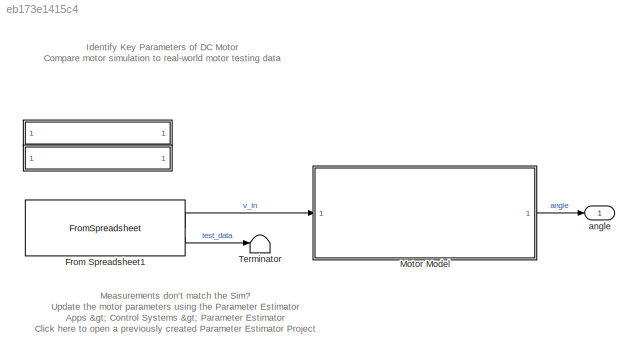
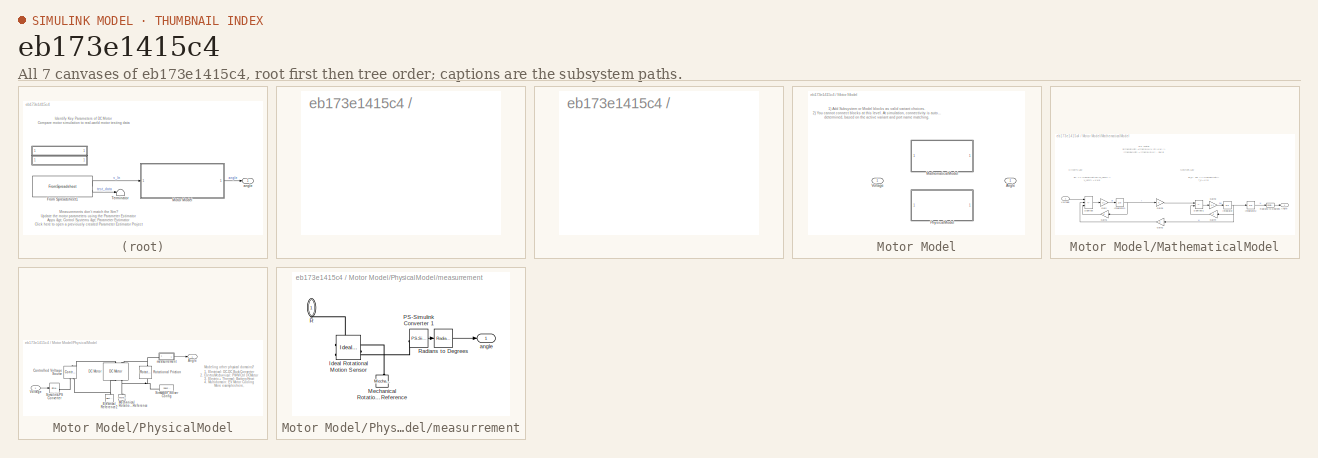
[diagram: thumbnail index - all 7 canvases of the model, root first then tree order]
MODEL slx_eb173e1415c4
KIND model
CONFIG AbsTol = auto
CONFIG EnableMultiTasking = off
CONFIG FixedStep = auto
CONFIG MaxStep = auto
CONFIG MinStep = auto
CONFIG RelTol = 1e-3
CONFIG SampleTimeConstraint = Unconstrained
CONFIG SolverName = VariableStepAuto
CONFIG StartTime = 0.0
CONFIG StopTime = 10.0
BLOCK [SubSystem]  
  OpenFcn = clear\ntry\n    DCMtr_b = 0.3;\n    DCMtr_Fs = 0.25;\n    DCMtr_J = 0.02;\n    DCMtr_K = 0.1;\n    DCMtr_L = 0.1;\n    DCMtr_R = 5;\n    Ts = 0.01;\n    msgbox('Variables loaded to MATLAB workspace')\ncatch\n    error('Error loading parameters')\nend
BLOCK [SubSystem]   
  OpenFcn = clear\ntry\n    DCMtr_b = 0.1328;\n    DCMtr_Fs = 0.25;\n    DCMtr_J = 0.0363;\n    DCMtr_K = 0.7577;\n    DCMtr_L = 0.1451;\n    DCMtr_R = 2.2142;\n    Ts = 0.01;\n    msgbox('Variables loaded to MATLAB workspace')\ncatch\n    error('Error loading parameters')\nend
BLOCK [FromSpreadsheet] From Spreadsheet1
  FileName = Motor Test Data.xlsx
  Range = A1:C80002
  SheetName = Motor Test Data
BLOCK [SubSystem] Motor Model
  LabelModeActiveChoice = Simulink
  Variant = on
  VariantControlMode = label
BLOCK [Outport] Motor Model/Angle
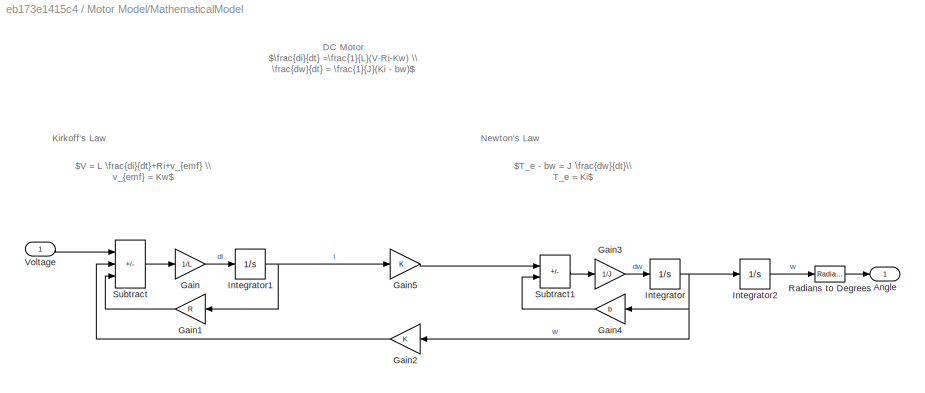
BLOCK [SubSystem] Motor Model/MathematicalModel
  VariantControl = Simulink
BLOCK [Outport] Motor Model/MathematicalModel/Angle
  VectorParamsAs1DForOutWhenUnconnected = off
BLOCK [Gain] Motor Model/MathematicalModel/Gain
  Gain = 1/L
BLOCK [Gain] Motor Model/MathematicalModel/Gain1
  Gain = R
BLOCK [Gain] Motor Model/MathematicalModel/Gain2
  Gain = K
BLOCK [Gain] Motor Model/MathematicalModel/Gain3
  Gain = 1/J
BLOCK [Gain] Motor Model/MathematicalModel/Gain4
  Gain = b
BLOCK [Gain] Motor Model/MathematicalModel/Gain5
  Gain = K
BLOCK [Integrator] Motor Model/MathematicalModel/Integrator
BLOCK [Integrator] Motor Model/MathematicalModel/Integrator1
BLOCK [Integrator] Motor Model/MathematicalModel/Integrator2
BLOCK [Reference] Motor Model/MathematicalModel/Radians to Degrees  REF=simulink_extras/Transformations/Radians
to Degrees
  SourceBlock = simulink_extras/Transformations/Radians\nto Degrees
  SourceType = RadiansToDegrees
BLOCK [Sum] Motor Model/MathematicalModel/Subtract
  IconShape = rectangular
  Inputs = +--
BLOCK [Sum] Motor Model/MathematicalModel/Subtract1
  IconShape = rectangular
  Inputs = +-
BLOCK [Inport] Motor Model/MathematicalModel/Voltage
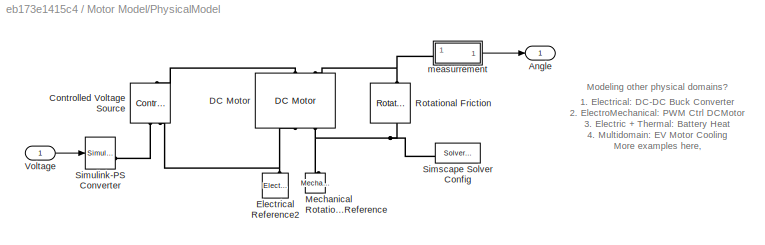
BLOCK [SubSystem] Motor Model/PhysicalModel
  VariantControl = Simscape
BLOCK [Outport] Motor Model/PhysicalModel/Angle
  VectorParamsAs1DForOutWhenUnconnected = off
BLOCK [Reference] Motor Model/PhysicalModel/Controlled Voltage Source  REF=fl_lib/Electrical/Electrical Sources/Controlled Voltage
Source
  NameLocation = left
  SourceBlock = fl_lib/Electrical/Electrical Sources/Controlled Voltage\nSource
  SourceType = Controlled Voltage\nSource
BLOCK [Reference] Motor Model/PhysicalModel/DC Motor  REF=ee_lib/Electromechanical/Brushed Motors/DC Motor
  NameLocation = left
  SourceBlock = ee_lib/Electromechanical/Brushed Motors/DC Motor
  SourceType = DC Motor
BLOCK [Reference] Motor Model/PhysicalModel/Electrical Reference2  REF=fl_lib/Electrical/Electrical Elements/Electrical Reference
  NameLocation = right
  SourceBlock = fl_lib/Electrical/Electrical Elements/Electrical Reference
  SourceType = Electrical Reference
BLOCK [Reference] Motor Model/PhysicalModel/Mechanical Rotational Reference  REF=fl_lib/Mechanical/Rotational Elements/Mechanical
Rotational Reference
  NameLocation = left
  SourceBlock = fl_lib/Mechanical/Rotational Elements/Mechanical\nRotational Reference
  SourceType = Mechanical\nRotational Reference
BLOCK [Reference] Motor Model/PhysicalModel/Rotational Friction  REF=fl_lib/Mechanical/Rotational Elements/Rotational Friction
  NameLocation = top
  SourceBlock = fl_lib/Mechanical/Rotational Elements/Rotational Friction
  SourceType = Rotational Friction
BLOCK [Reference] Motor Model/PhysicalModel/Simscape Solver Config  REF=nesl_utility/Solver
Configuration
  SourceBlock = nesl_utility/Solver\nConfiguration
  SourceType = Solver\nConfiguration
BLOCK [Reference] Motor Model/PhysicalModel/Simulink-PS Converter  REF=nesl_utility/Simulink-PS
Converter
  SourceBlock = nesl_utility/Simulink-PS\nConverter
  SourceType = Simulink-PS\nConverter
BLOCK [Inport] Motor Model/PhysicalModel/Voltage
BLOCK [SubSystem] Motor Model/PhysicalModel/measurrement
BLOCK [Reference] Motor Model/PhysicalModel/measurrement/Ideal Rotational Motion Sensor  REF=fl_lib/Mechanical/Mechanical Sensors/Ideal Rotational
Motion Sensor
  NameLocation = top
  SourceBlock = fl_lib/Mechanical/Mechanical Sensors/Ideal Rotational\nMotion Sensor
  SourceType = Ideal Rotational\nMotion Sensor
BLOCK [Reference] Motor Model/PhysicalModel/measurrement/Mechanical Rotational Reference  REF=fl_lib/Mechanical/Rotational Elements/Mechanical
Rotational Reference
  NameLocation = right
  SourceBlock = fl_lib/Mechanical/Rotational Elements/Mechanical\nRotational Reference
  SourceType = Mechanical\nRotational Reference
BLOCK [Reference] Motor Model/PhysicalModel/measurrement/PS-Simulink Converter 1  REF=nesl_utility/PS-Simulink
Converter
  SourceBlock = nesl_utility/PS-Simulink\nConverter
  SourceType = PS-Simulink\nConverter
BLOCK [PMIOPort] Motor Model/PhysicalModel/measurrement/R
  NameLocation = left
  Side = Left
BLOCK [Reference] Motor Model/PhysicalModel/measurrement/Radians to Degrees  REF=simulink_extras/Transformations/Radians
to Degrees
  SourceBlock = simulink_extras/Transformations/Radians\nto Degrees
  SourceType = RadiansToDegrees
BLOCK [Outport] Motor Model/PhysicalModel/measurrement/angle
BLOCK [Inport] Motor Model/Voltage
BLOCK [Terminator] Terminator
BLOCK [Outport] angle
ANNOTATION (root): Identify Key Parameters of DC Motor Compare motor simulation to real-world motor testing data
ANNOTATION (root): Measurements don't match the Sim? Update the motor parameters using the Parameter Estimator Apps > Control Systems > Parameter Estimator Click here to open a previously created Parameter Estimator Project
ANNOTATION Motor Model: 1) Add Subsystem or Model blocks as valid variant choices. 2) You cannot connect blocks at this level. At simulation, connectivity is automatically determined, based on the active variant and port name matching.
ANNOTATION Motor Model/MathematicalModel: DC Motor $\frac{di}{dt} =\frac{1}{L}(V-Ri-Kw) \\ \frac{dw}{dt} = \frac{1}{J}(Ki - bw)$
ANNOTATION Motor Model/MathematicalModel: $T_e - bw = J \frac{dw}{dt}\\ T_e = Ki$
ANNOTATION Motor Model/MathematicalModel: $V = L \frac{di}{dt}+Ri+v_{emf} \\ v_{emf} = Kw$
ANNOTATION Motor Model/MathematicalModel: Kirkoff's Law
ANNOTATION Motor Model/MathematicalModel: Newton's Law
ANNOTATION Motor Model/PhysicalModel: 1. Electrical: DC-DC Buck Converter 2. ElectroMechanical: PWM Ctrl DCMotor 3. Electric + Thermal: Battery Heat 4. Multidomain: EV Motor Cooling More examples here ,
ANNOTATION Motor Model/PhysicalModel: Modeling other physical domains?
LINE From Spreadsheet1:1 -> Motor Model:1
LINE From Spreadsheet1:2 -> Terminator:1
LINE Motor Model/MathematicalModel/Gain1:1 -> Motor Model/MathematicalModel/Subtract:3
LINE Motor Model/MathematicalModel/Gain2:1 -> Motor Model/MathematicalModel/Subtract:2
LINE Motor Model/MathematicalModel/Gain3:1 -> Motor Model/MathematicalModel/Integrator:1
LINE Motor Model/MathematicalModel/Gain4:1 -> Motor Model/MathematicalModel/Subtract1:2
LINE Motor Model/MathematicalModel/Gain5:1 -> Motor Model/MathematicalModel/Subtract1:1
LINE Motor Model/MathematicalModel/Gain:1 -> Motor Model/MathematicalModel/Integrator1:1
NET Motor Model/MathematicalModel/Integrator1:1 -> Motor Model/MathematicalModel/Gain1:1, Motor Model/MathematicalModel/Gain5:1
LINE Motor Model/MathematicalModel/Integrator2:1 -> Motor Model/MathematicalModel/Radians to Degrees:1
NET Motor Model/MathematicalModel/Integrator:1 -> Motor Model/MathematicalModel/Gain2:1, Motor Model/MathematicalModel/Gain4:1, Motor Model/MathematicalModel/Integrator2:1
LINE Motor Model/MathematicalModel/Radians to Degrees:1 -> Motor Model/MathematicalModel/Angle:1
LINE Motor Model/MathematicalModel/Subtract1:1 -> Motor Model/MathematicalModel/Gain3:1
LINE Motor Model/MathematicalModel/Subtract:1 -> Motor Model/MathematicalModel/Gain:1
LINE Motor Model/MathematicalModel/Voltage:1 -> Motor Model/MathematicalModel/Subtract:1
LINE Motor Model/PhysicalModel/Voltage:1 -> Motor Model/PhysicalModel/Simulink-PS Converter:1
LINE Motor Model/PhysicalModel/measurrement/PS-Simulink Converter 1:1 -> Motor Model/PhysicalModel/measurrement/Radians to Degrees:1
LINE Motor Model/PhysicalModel/measurrement/Radians to Degrees:1 -> Motor Model/PhysicalModel/measurrement/angle:1
LINE Motor Model/PhysicalModel/measurrement:1 -> Motor Model/PhysicalModel/Angle:1
LINE Motor Model:1 -> angle:1
PLINE Motor Model/PhysicalModel/Controlled Voltage Source:LConn1 -- Motor Model/PhysicalModel/DC Motor:LConn1
PLINE Motor Model/PhysicalModel/Controlled Voltage Source:RConn1 -- Motor Model/PhysicalModel/Simulink-PS Converter:RConn1
PNET net1: Motor Model/PhysicalModel/Controlled Voltage Source:RConn2 -- Motor Model/PhysicalModel/DC Motor:RConn1 -- Motor Model/PhysicalModel/Electrical Reference2:LConn1
PNET net2: Motor Model/PhysicalModel/DC Motor:LConn2 -- Motor Model/PhysicalModel/Rotational Friction:LConn1 -- Motor Model/PhysicalModel/measurrement:LConn1
PNET net3: Motor Model/PhysicalModel/DC Motor:RConn2 -- Motor Model/PhysicalModel/Mechanical Rotational Reference:LConn1 -- Motor Model/PhysicalModel/Rotational Friction:RConn1 -- Motor Model/PhysicalModel/Simscape Solver Config:RConn1
PLINE Motor Model/PhysicalModel/measurrement/Ideal Rotational Motion Sensor:LConn1 -- Motor Model/PhysicalModel/measurrement/R:RConn1
PLINE Motor Model/PhysicalModel/measurrement/Ideal Rotational Motion Sensor:RConn1 -- Motor Model/PhysicalModel/measurrement/Mechanical Rotational Reference:LConn1
PLINE Motor Model/PhysicalModel/measurrement/Ideal Rotational Motion Sensor:RConn3 -- Motor Model/PhysicalModel/measurrement/PS-Simulink Converter 1:LConn1
note: NET lines group one-source signal fan-out (src -> all destinations, sorted); 1:1 wires keep LINE; PNET lines group multi-terminal physical nets as a canonical sorted terminal list (undirected conserving connections); 2-terminal nets keep the pairwise PLINE form
